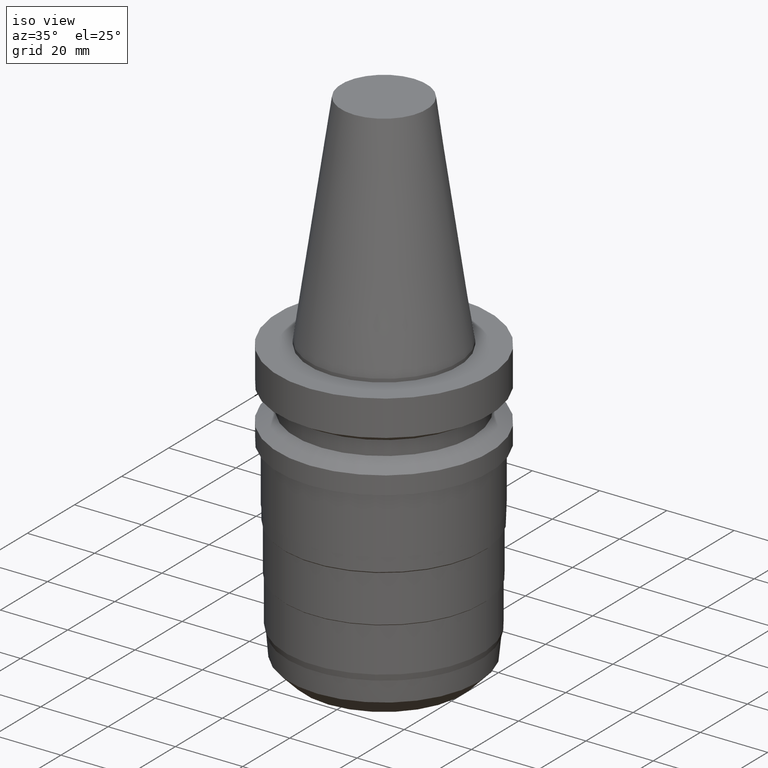
[diagram: clean part render]
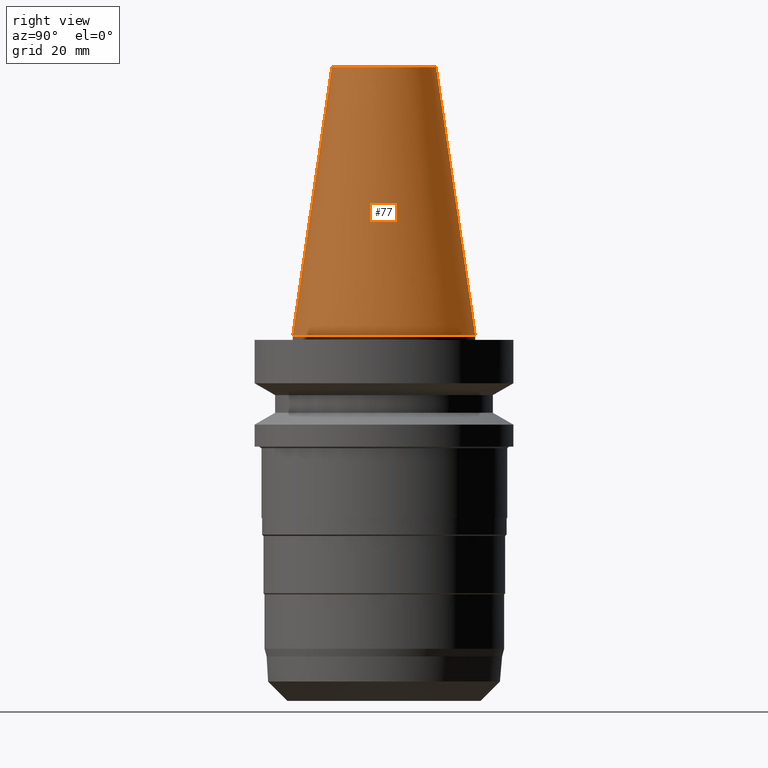
[diagram: tour spotlight — one face highlighted and labeled with its STEP entity id]
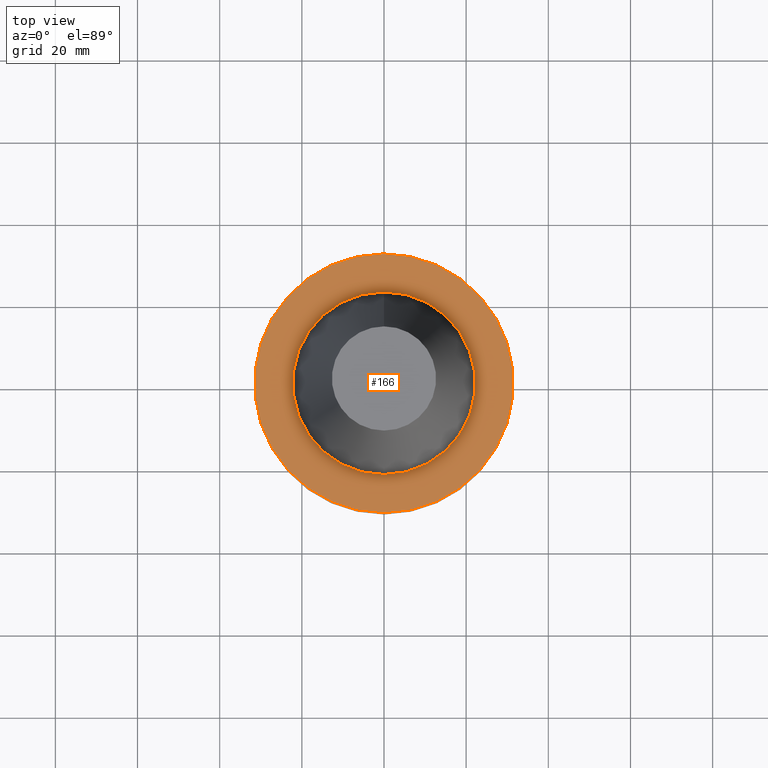
[diagram: tour spotlight — one face highlighted and labeled with its STEP entity id]
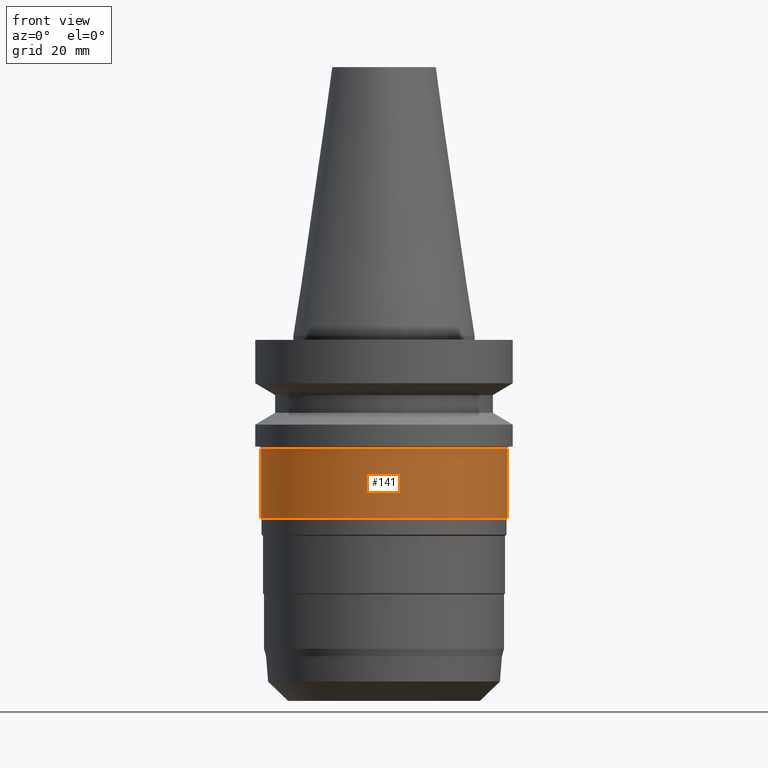
[diagram: tour spotlight — one face highlighted and labeled with its STEP entity id]
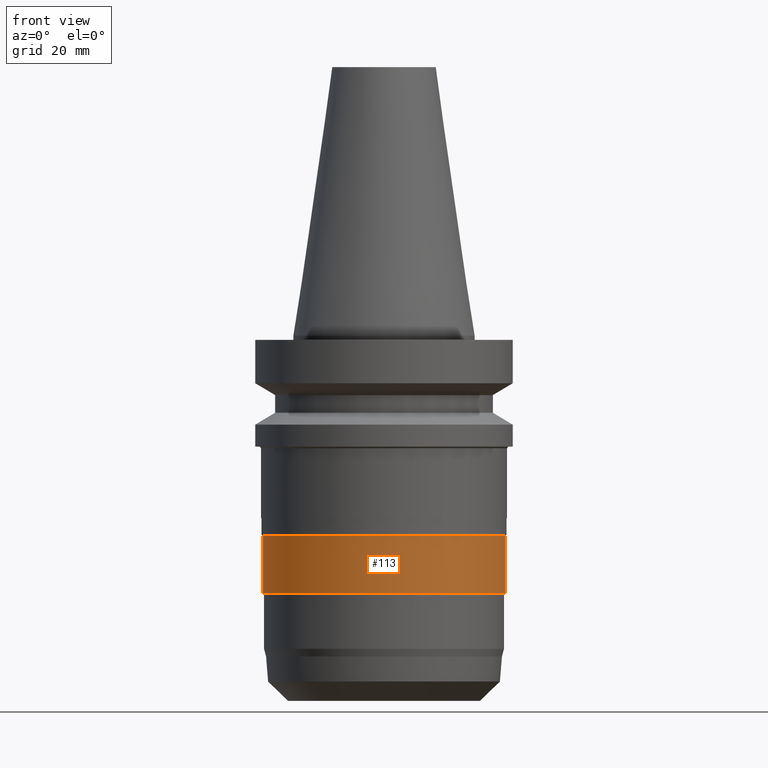
[diagram: tour spotlight — one face highlighted and labeled with its STEP entity id]
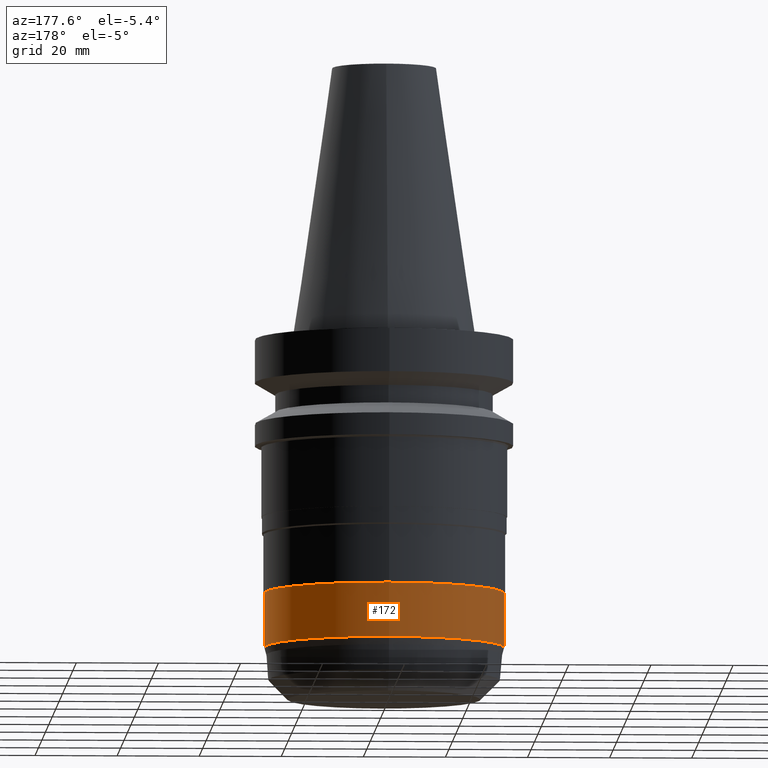
[diagram: tour spotlight — one face highlighted and labeled with its STEP entity id]
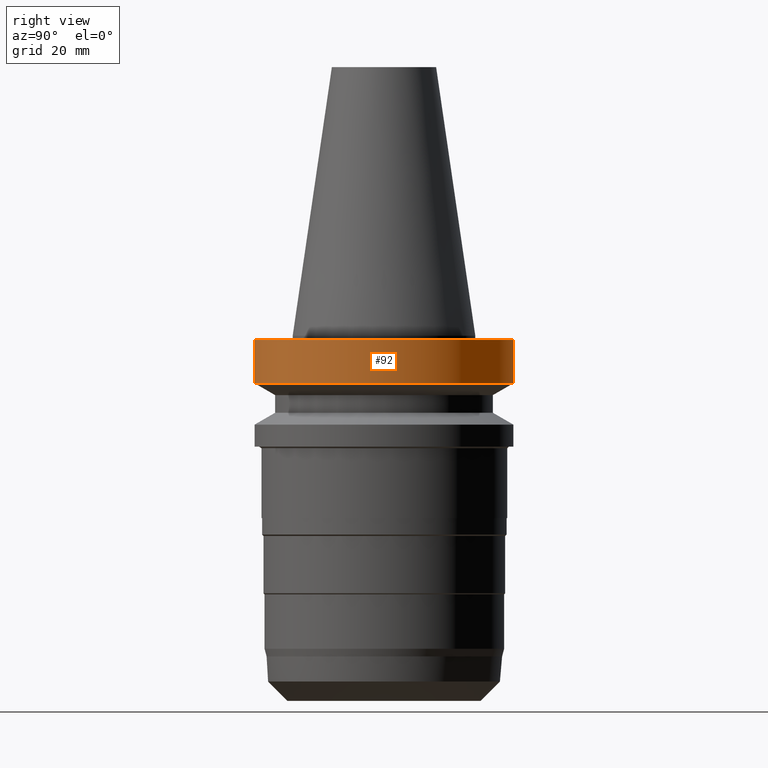
[diagram: tour spotlight — one face highlighted and labeled with its STEP entity id]
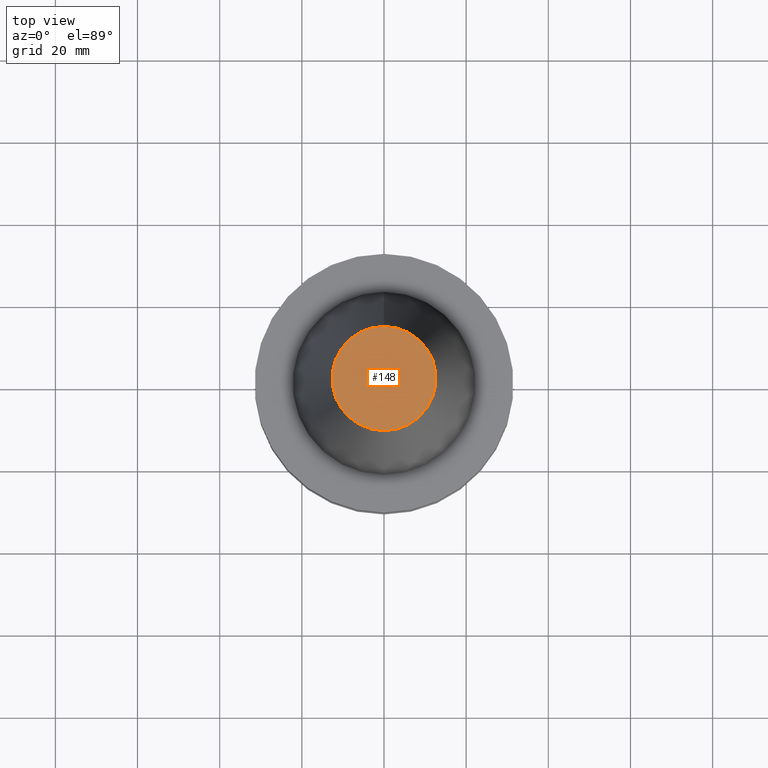
[diagram: tour spotlight — one face highlighted and labeled with its STEP entity id]
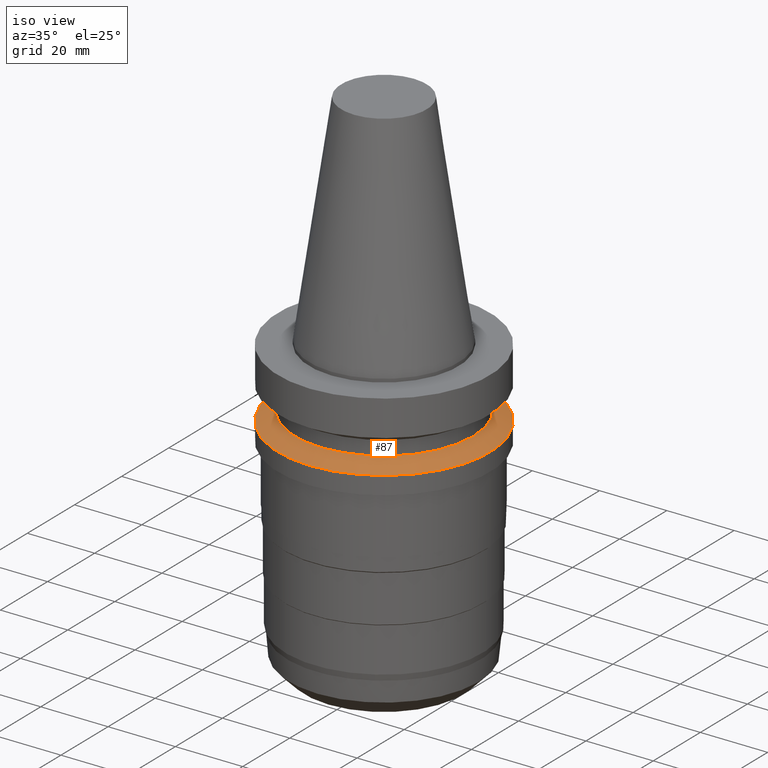
[diagram: tour spotlight — one face highlighted and labeled with its STEP entity id]
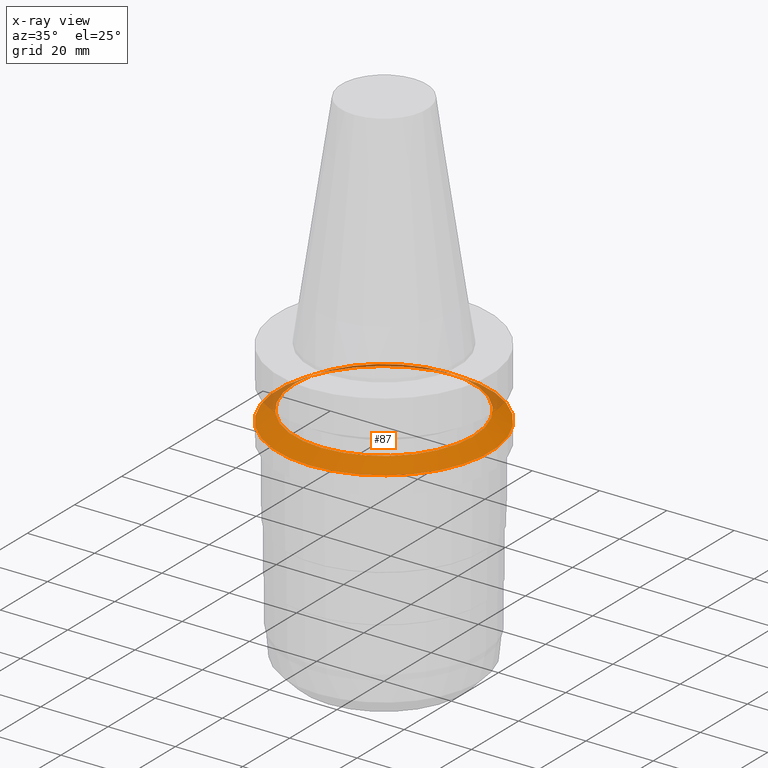
[diagram: x-ray of the same camera — body ghosted, this tour face saturated]
A machine part: a face-by-face anatomy tour. The part has 22 B-rep faces; the first image is the clean iso view, then the 8 largest visible faces are spotlighted one at a time (largest first), each with its STEP entity span.

Face 1 — right view, entity #77. In plain terms, the highlighted conical surface has half-angle 8.297 deg.
Definition (entity closure, byte-faithful):
#77=ADVANCED_FACE('Unnamed[1]',(#209,#210),#211,.T.);
#131=EDGE_CURVE('Unnamed[1]',#294,#294,#295,.T.);
#156=EDGE_CURVE('Unnamed[1]',#332,#332,#333,.T.);
#209=FACE_BOUND('',#393,.T.);
#210=FACE_BOUND('',#394,.T.);
#211=CONICAL_SURFACE('',#395,17.4562500000001,0.144812498238936);
#294=VERTEX_POINT('',#498);
#295=CIRCLE('',#499,12.6875000000002);
#332=VERTEX_POINT('',#547);
#333=CIRCLE('',#548,22.2250000000001);
#393=EDGE_LOOP('',(#608));
#394=EDGE_LOOP('',(#609));
#395=AXIS2_PLACEMENT_3D('',#610,#611,#612);
#498=CARTESIAN_POINT('',(-4.00459503321185E-015,12.6875000000002,65.4000000000001));
#499=AXIS2_PLACEMENT_3D('',#703,#704,#705);
#547=CARTESIAN_POINT('',(1.71319921032766E-029,22.2250000000001,-2.8153873565375E-013));
#548=AXIS2_PLACEMENT_3D('',#744,#745,#746);
#608=ORIENTED_EDGE('',*,*,#156,.F.);
#609=ORIENTED_EDGE('',*,*,#131,.T.);
#610=CARTESIAN_POINT('',(-2.00229751660592E-015,-4.00459503321183E-015,32.6999999999999));
#611=DIRECTION('',(6.12323399573677E-017,1.22464679914734E-016,-1.0));
#612=DIRECTION('',(-1.23259516440803E-032,1.0,1.22464679914734E-016));
#703=CARTESIAN_POINT('',(-4.00459503321185E-015,-8.0091900664237E-015,65.4000000000001));
#704=DIRECTION('',(6.12323399573677E-017,1.22464679914757E-016,-1.0));
#705=DIRECTION('',(-1.23259516440781E-032,1.0,1.22464679914757E-016));
#744=CARTESIAN_POINT('',(1.74032777401202E-029,3.48065554802404E-029,-2.8421709430404E-013));
#745=DIRECTION('',(6.12323399573677E-017,1.22464679914758E-016,-1.0));
#746=DIRECTION('',(-1.23259516440775E-032,1.0,1.22464679914758E-016));

Face 2 — top view, entity #166. In plain terms, the highlighted planar face has unit normal (-0, -0, 1).
Definition (entity closure, byte-faithful):
#110=EDGE_CURVE('Unnamed[1]',#262,#262,#263,.T.);
#161=EDGE_CURVE('Unnamed[1]',#340,#340,#341,.T.);
#166=ADVANCED_FACE('Unnamed[1]',(#347,#348),#349,.T.);
#262=VERTEX_POINT('',#459);
#263=CIRCLE('',#460,22.2250000000001);
#340=VERTEX_POINT('',#557);
#341=CIRCLE('',#558,31.4999999999997);
#347=FACE_OUTER_BOUND('',#566,.T.);
#348=FACE_BOUND('',#567,.T.);
#349=PLANE('',#568);
#459=CARTESIAN_POINT('',(6.12323399573622E-017,22.2250000000001,-0.999999999999912));
#460=AXIS2_PLACEMENT_3D('',#669,#670,#671);
#557=CARTESIAN_POINT('',(6.12323399573568E-017,31.4999999999997,-0.999999999999825));
#558=AXIS2_PLACEMENT_3D('',#753,#754,#755);
#566=EDGE_LOOP('',(#760));
#567=EDGE_LOOP('',(#761));
#568=AXIS2_PLACEMENT_3D('',#762,#763,#764);
#669=CARTESIAN_POINT('',(6.12323399573624E-017,1.22464679914725E-016,-0.999999999999915));
#670=DIRECTION('',(6.12323399573677E-017,1.22464679914758E-016,-1.0));
#671=DIRECTION('',(-1.23259516440775E-032,1.0,1.22464679914758E-016));
#753=CARTESIAN_POINT('',(6.12323399573572E-017,1.22464679914714E-016,-0.999999999999829));
#754=DIRECTION('',(6.12323399573677E-017,1.22464679914771E-016,-1.0));
#755=DIRECTION('',(-1.23259516440784E-032,1.0,1.22464679914771E-016));
#760=ORIENTED_EDGE('',*,*,#161,.F.);
#761=ORIENTED_EDGE('',*,*,#110,.T.);
#762=CARTESIAN_POINT('',(6.12323399573595E-017,26.8624999999999,-0.999999999999869));
#763=DIRECTION('',(-6.12323399573677E-017,-9.35138060429241E-015,1.0));
#764=DIRECTION('',(5.77434068963536E-031,-1.0,-9.35138060429241E-015));

Face 3 — front view, entity #141. In plain terms, the highlighted cylindrical surface (bore or boss wall) has radius 30 mm, axis along (0, 0, -1).
Definition (entity closure, byte-faithful):
#84=EDGE_CURVE('Unnamed[1]',#221,#221,#222,.T.);
#121=EDGE_CURVE('Unnamed[1]',#278,#278,#279,.T.);
#141=ADVANCED_FACE('Unnamed[1]',(#309,#310),#311,.T.);
#221=VERTEX_POINT('',#408);
#222=CIRCLE('',#409,30.0000000000004);
#278=VERTEX_POINT('',#478);
#279=CIRCLE('',#479,29.9999999999999);
#309=FACE_BOUND('',#517,.T.);
#310=FACE_BOUND('',#518,.T.);
#311=CYLINDRICAL_SURFACE('',#519,30.0000000000001);
#408=CARTESIAN_POINT('',(2.71871589410711E-015,30.0000000000004,-44.3999999999997));
#409=AXIS2_PLACEMENT_3D('',#622,#623,#624);
#478=CARTESIAN_POINT('',(1.67776611483187E-015,29.9999999999999,-27.3999999999999));
#479=AXIS2_PLACEMENT_3D('',#685,#686,#687);
#517=EDGE_LOOP('',(#719));
#518=EDGE_LOOP('',(#720));
#519=AXIS2_PLACEMENT_3D('',#721,#722,#723);
#622=CARTESIAN_POINT('',(2.71871589410711E-015,5.43743178821421E-015,-44.3999999999997));
#623=DIRECTION('',(6.12323399573677E-017,1.22464679914692E-016,-1.0));
#624=DIRECTION('',(-1.23259516440782E-032,1.0,1.22464679914692E-016));
#685=CARTESIAN_POINT('',(1.67776611483187E-015,3.35553222966373E-015,-27.3999999999999));
#686=DIRECTION('',(6.12323399573677E-017,1.22464679914694E-016,-1.0));
#687=DIRECTION('',(-1.23259516440784E-032,1.0,1.22464679914694E-016));
#719=ORIENTED_EDGE('',*,*,#84,.F.);
#720=ORIENTED_EDGE('',*,*,#121,.T.);
#721=CARTESIAN_POINT('',(2.19824100446949E-015,4.39648200893897E-015,-35.8999999999998));
#722=DIRECTION('',(6.12323399573677E-017,1.22464679914693E-016,-1.0));
#723=DIRECTION('',(-1.23259516440783E-032,1.0,1.22464679914693E-016));

Face 4 — front view, entity #113. In plain terms, the highlighted cylindrical surface (bore or boss wall) has radius 29.5 mm, axis along (0, 0, -1).
Definition (entity closure, byte-faithful):
#89=EDGE_CURVE('Unnamed[1]',#229,#229,#230,.T.);
#113=ADVANCED_FACE('Unnamed[1]',(#266,#267),#268,.T.);
#143=EDGE_CURVE('Unnamed[1]',#313,#313,#314,.T.);
#229=VERTEX_POINT('',#418);
#230=CIRCLE('',#419,29.5);
#266=FACE_BOUND('',#464,.T.);
#267=FACE_BOUND('',#465,.T.);
#268=CYLINDRICAL_SURFACE('',#466,29.5);
#313=VERTEX_POINT('',#522);
#314=CIRCLE('',#523,29.5);
#418=CARTESIAN_POINT('',(2.98507657292167E-015,29.5,-48.75));
#419=AXIS2_PLACEMENT_3D('',#631,#632,#633);
#464=EDGE_LOOP('',(#673));
#465=EDGE_LOOP('',(#674));
#466=AXIS2_PLACEMENT_3D('',#675,#676,#677);
#522=CARTESIAN_POINT('',(3.83926771532695E-015,29.5,-62.7));
#523=AXIS2_PLACEMENT_3D('',#724,#725,#726);
#631=CARTESIAN_POINT('',(2.98507657292167E-015,5.97015314584335E-015,-48.75));
#632=DIRECTION('',(6.12323399573677E-017,1.22464679914757E-016,-1.0));
#633=DIRECTION('',(-1.23259516440783E-032,1.0,1.22464679914757E-016));
#673=ORIENTED_EDGE('',*,*,#143,.F.);
#674=ORIENTED_EDGE('',*,*,#89,.T.);
#675=CARTESIAN_POINT('',(3.41217214412431E-015,6.82434428824862E-015,-55.725));
#676=DIRECTION('',(6.12323399573677E-017,1.22464679914757E-016,-1.0));
#677=DIRECTION('',(-1.23259516440783E-032,1.0,1.22464679914757E-016));
#724=CARTESIAN_POINT('',(3.83926771532695E-015,7.6785354306539E-015,-62.7));
#725=DIRECTION('',(6.12323399573677E-017,1.22464679914757E-016,-1.0));
#726=DIRECTION('',(-1.23259516440783E-032,1.0,1.22464679914757E-016));

Face 5 — auxiliary view, entity #172. In plain terms, the highlighted cylindrical surface (bore or boss wall) has radius 29.25 mm, axis along (0, 0, -1).
Definition (entity closure, byte-faithful):
#108=EDGE_CURVE('Unnamed[1]',#259,#259,#260,.T.);
#154=EDGE_CURVE('Unnamed[1]',#329,#329,#330,.T.);
#172=ADVANCED_FACE('Unnamed[1]',(#357,#358),#359,.T.);
#259=VERTEX_POINT('',#455);
#260=CIRCLE('',#456,29.25);
#329=VERTEX_POINT('',#543);
#330=CIRCLE('',#544,29.25);
#357=FACE_BOUND('',#578,.T.);
#358=FACE_BOUND('',#579,.T.);
#359=CYLINDRICAL_SURFACE('',#580,29.25);
#455=CARTESIAN_POINT('',(4.66590430475142E-015,29.25,-76.2));
#456=AXIS2_PLACEMENT_3D('',#666,#667,#668);
#543=CARTESIAN_POINT('',(3.85457580031629E-015,29.25,-62.95));
#544=AXIS2_PLACEMENT_3D('',#741,#742,#743);
#578=EDGE_LOOP('',(#772));
#579=EDGE_LOOP('',(#773));
#580=AXIS2_PLACEMENT_3D('',#774,#775,#776);
#666=CARTESIAN_POINT('',(4.66590430475142E-015,9.33180860950283E-015,-76.2));
#667=DIRECTION('',(6.12323399573677E-017,1.22464679914762E-016,-1.0));
#668=DIRECTION('',(-1.23259516440783E-032,1.0,1.22464679914762E-016));
#741=CARTESIAN_POINT('',(3.85457580031629E-015,7.70915160063259E-015,-62.95));
#742=DIRECTION('',(6.12323399573677E-017,1.22464679914762E-016,-1.0));
#743=DIRECTION('',(-1.23259516440783E-032,1.0,1.22464679914762E-016));
#772=ORIENTED_EDGE('',*,*,#108,.F.);
#773=ORIENTED_EDGE('',*,*,#154,.T.);
#774=CARTESIAN_POINT('',(4.26024005253385E-015,8.52048010506771E-015,-69.575));
#775=DIRECTION('',(6.12323399573677E-017,1.22464679914762E-016,-1.0));
#776=DIRECTION('',(-1.23259516440783E-032,1.0,1.22464679914762E-016));

Face 6 — right view, entity #92. In plain terms, the highlighted cylindrical surface (bore or boss wall) has radius 31.5 mm, axis along (0, 0, -1).
Definition (entity closure, byte-faithful):
#92=ADVANCED_FACE('Unnamed[1]',(#233,#234),#235,.T.);
#161=EDGE_CURVE('Unnamed[1]',#340,#340,#341,.T.);
#174=EDGE_CURVE('Unnamed[1]',#361,#361,#362,.T.);
#233=FACE_BOUND('',#423,.T.);
#234=FACE_BOUND('',#424,.T.);
#235=CYLINDRICAL_SURFACE('',#425,31.5);
#340=VERTEX_POINT('',#557);
#341=CIRCLE('',#558,31.4999999999997);
#361=VERTEX_POINT('',#583);
#362=CIRCLE('',#584,31.5000000000004);
#423=EDGE_LOOP('',(#635));
#424=EDGE_LOOP('',(#636));
#425=AXIS2_PLACEMENT_3D('',#637,#638,#639);
#557=CARTESIAN_POINT('',(6.12323399573568E-017,31.4999999999997,-0.999999999999825));
#558=AXIS2_PLACEMENT_3D('',#753,#754,#755);
#583=CARTESIAN_POINT('',(7.08182973902924E-016,31.5000000000004,-11.5655056526664));
#584=AXIS2_PLACEMENT_3D('',#777,#778,#779);
#635=ORIENTED_EDGE('',*,*,#174,.F.);
#636=ORIENTED_EDGE('',*,*,#161,.T.);
#637=CARTESIAN_POINT('',(3.84707656930141E-016,7.69415313860281E-016,-6.28275282633309));
#638=DIRECTION('',(6.12323399573676E-017,1.2246467991477E-016,-1.0));
#639=DIRECTION('',(-1.23259516440783E-032,1.0,1.2246467991477E-016));
#753=CARTESIAN_POINT('',(6.12323399573572E-017,1.22464679914714E-016,-0.999999999999829));
#754=DIRECTION('',(6.12323399573677E-017,1.22464679914771E-016,-1.0));
#755=DIRECTION('',(-1.23259516440784E-032,1.0,1.22464679914771E-016));
#777=CARTESIAN_POINT('',(7.08182973902924E-016,1.41636594780585E-015,-11.5655056526664));
#778=DIRECTION('',(6.12323399573677E-017,1.22464679914769E-016,-1.0));
#779=DIRECTION('',(-1.23259516440782E-032,1.0,1.22464679914769E-016));

Face 7 — top view, entity #148. In plain terms, the highlighted planar face has unit normal (-0, 0, 1).
Definition (entity closure, byte-faithful):
#131=EDGE_CURVE('Unnamed[1]',#294,#294,#295,.T.);
#148=ADVANCED_FACE('Unnamed[1]',(#320),#321,.T.);
#294=VERTEX_POINT('',#498);
#295=CIRCLE('',#499,12.6875000000002);
#320=FACE_OUTER_BOUND('',#531,.T.);
#321=PLANE('',#532);
#498=CARTESIAN_POINT('',(-4.00459503321185E-015,12.6875000000002,65.4000000000001));
#499=AXIS2_PLACEMENT_3D('',#703,#704,#705);
#531=EDGE_LOOP('',(#731));
#532=AXIS2_PLACEMENT_3D('',#732,#733,#734);
#703=CARTESIAN_POINT('',(-4.00459503321185E-015,-8.0091900664237E-015,65.4000000000001));
#704=DIRECTION('',(6.12323399573677E-017,1.22464679914757E-016,-1.0));
#705=DIRECTION('',(-1.23259516440781E-032,1.0,1.22464679914757E-016));
#731=ORIENTED_EDGE('',*,*,#131,.F.);
#732=CARTESIAN_POINT('',(-4.00459503321185E-015,6.34375000000009,65.4000000000001));
#733=DIRECTION('',(-6.12323399573677E-017,9.97602686800676E-016,1.0));
#734=DIRECTION('',(-5.62583941297933E-032,-1.0,9.97602686800676E-016));

Face 8 — iso view, entity #87. An x-ray twin of the same camera follows (body ghosted, this face saturated) — the face is partly hidden behind the body. In plain terms, the highlighted conical surface has half-angle 60 deg.
Definition (entity closure, byte-faithful):
#79=EDGE_CURVE('Unnamed[1]',#213,#213,#214,.T.);
#87=ADVANCED_FACE('Unnamed[1]',(#225,#226),#227,.T.);
#123=EDGE_CURVE('Unnamed[1]',#281,#281,#282,.T.);
#213=VERTEX_POINT('',#398);
#214=CIRCLE('',#399,31.5000000000007);
#225=FACE_BOUND('',#413,.T.);
#226=FACE_BOUND('',#414,.T.);
#227=CONICAL_SURFACE('',#415,29.0000000000004,1.04719755119651);
#281=VERTEX_POINT('',#482);
#282=CIRCLE('',#483,26.5);
#398=CARTESIAN_POINT('',(1.32473071268174E-015,31.5000000000007,-21.6344943473346));
#399=AXIS2_PLACEMENT_3D('',#613,#614,#615);
#413=EDGE_LOOP('',(#626));
#414=EDGE_LOOP('',(#627));
#415=AXIS2_PLACEMENT_3D('',#628,#629,#630);
#482=CARTESIAN_POINT('',(1.1479681728942E-015,26.5,-18.7477430013855));
#483=AXIS2_PLACEMENT_3D('',#688,#689,#690);
#613=CARTESIAN_POINT('',(1.32473071268174E-015,2.64946142536349E-015,-21.6344943473346));
#614=DIRECTION('',(6.12323399573677E-017,1.22464679914767E-016,-1.0));
#615=DIRECTION('',(-1.2325951644078E-032,1.0,1.22464679914767E-016));
#626=ORIENTED_EDGE('',*,*,#79,.F.);
#627=ORIENTED_EDGE('',*,*,#123,.T.);
#628=CARTESIAN_POINT('',(1.23634944278797E-015,2.47269888557594E-015,-20.1911186743601));
#629=DIRECTION('',(6.12323399573676E-017,1.2246467991471E-016,-1.0));
#630=DIRECTION('',(-1.23259516440782E-032,1.0,1.2246467991471E-016));
#688=CARTESIAN_POINT('',(1.1479681728942E-015,2.29593634578839E-015,-18.7477430013855));
#689=DIRECTION('',(6.12323399573677E-017,1.22464679914764E-016,-1.0));
#690=DIRECTION('',(-1.23259516440783E-032,1.0,1.22464679914764E-016));